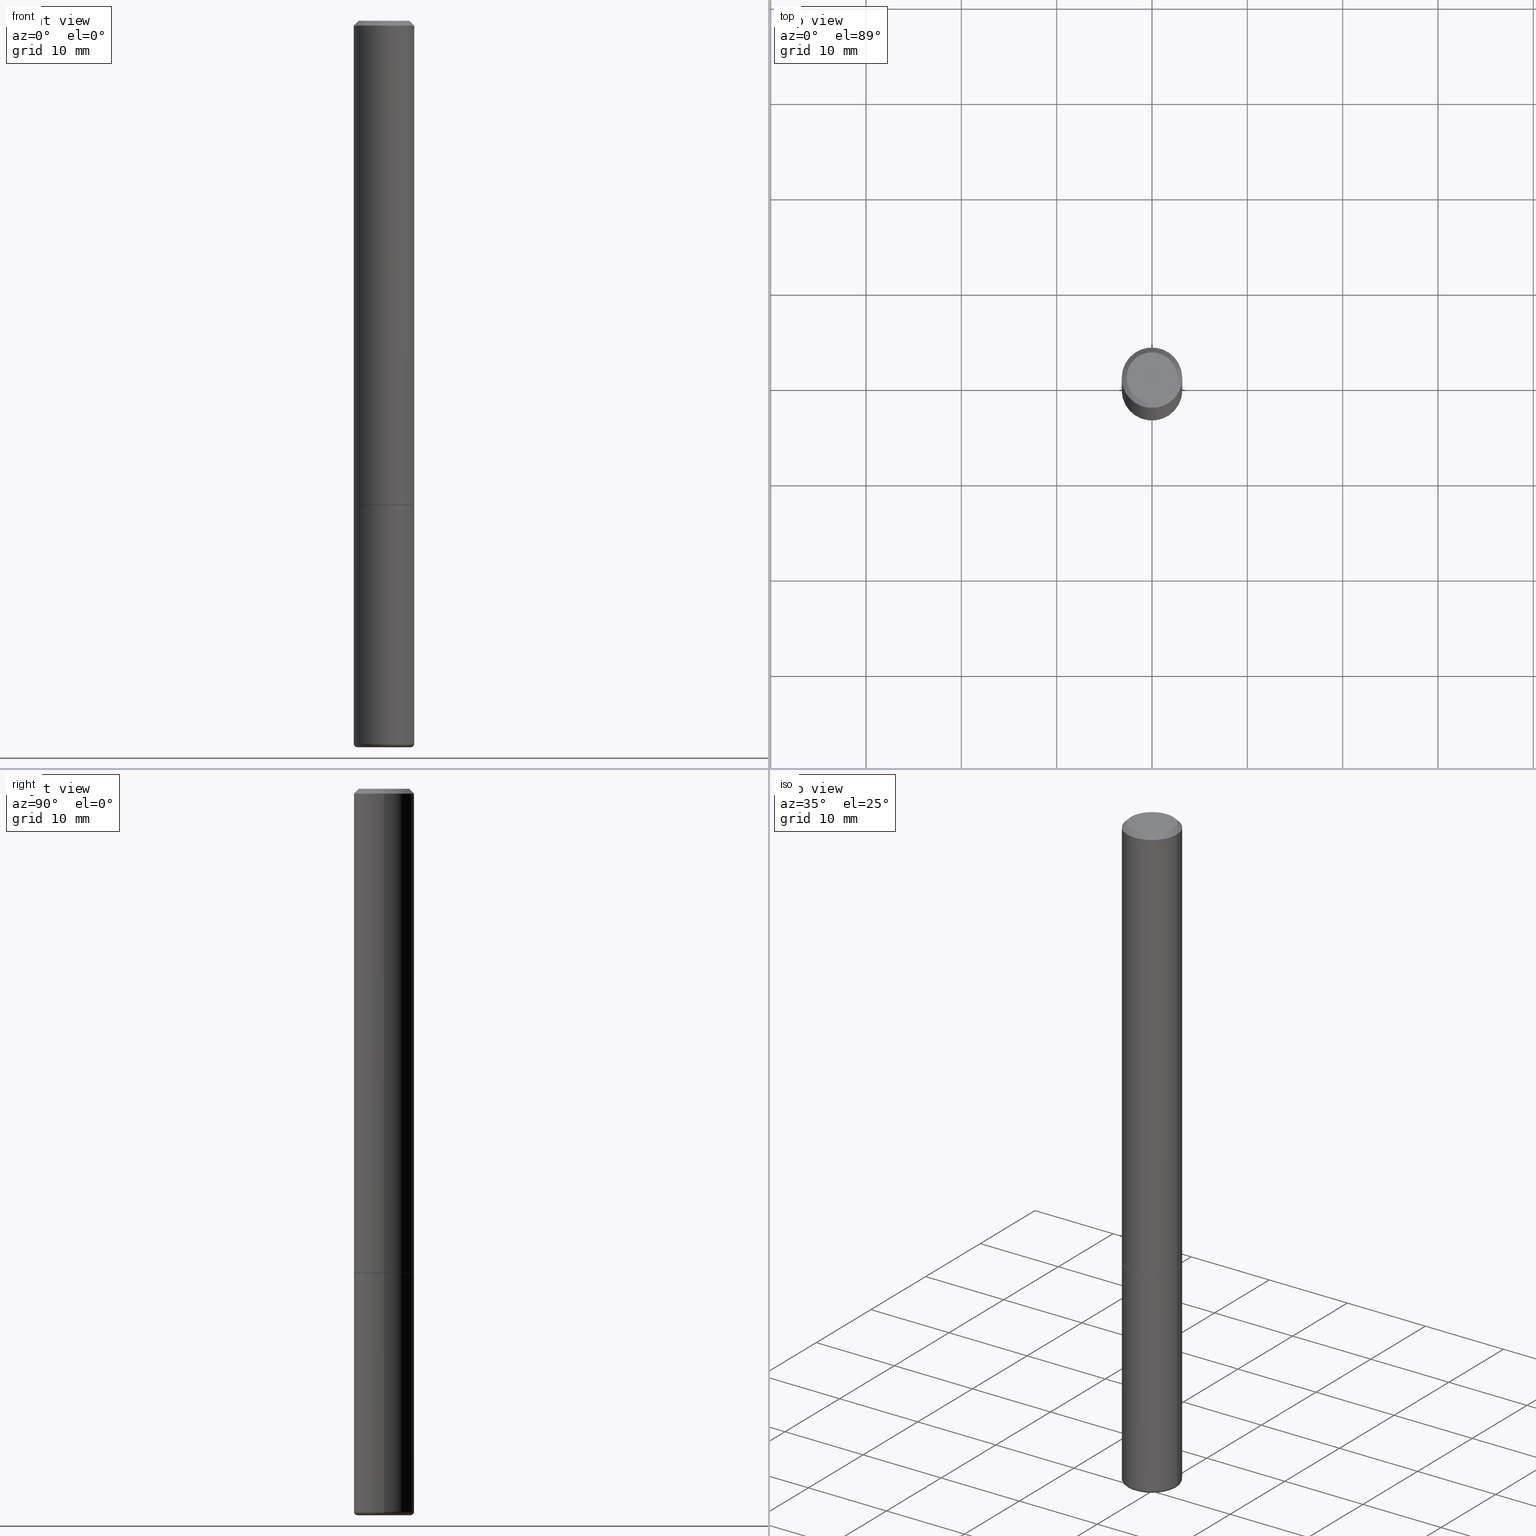
[diagram: canonical four-view strip — front | top / right | iso, engineering-drawing reading convention]
A machine part, canonical four-view strip (front | top / right | iso — engineering-drawing reading convention). The complete STEP part file that produces these views, byte-faithful:
ISO-10303-21;
HEADER;
FILE_DESCRIPTION (( 'STEP AP203' ),
    '1' );
FILE_NAME ('35672.STEP',
    '2022-11-02T20:38:24',
    ( '' ),
    ( '' ),
    'SwSTEP 2.0',
    'SolidWorks 2022',
    '' );
FILE_SCHEMA (( 'CONFIG_CONTROL_DESIGN' ));
ENDSEC;

DATA;
#1 = DIRECTION ( 'NONE',  ( -2.445468806185136597E-29, 3.491481338843145583E-15, 1.000000000000000000 ) ) ;
#2 = EDGE_CURVE ( 'NONE', #398, #193, #321, .T. ) ;
#3 = AXIS2_PLACEMENT_3D ( 'NONE', #360, #21, #473 ) ;
#4 = CARTESIAN_POINT ( 'NONE',  ( 4.890937612370295054E-31, -6.982962677686322424E-17, -0.02000000000000009062 ) ) ;
#5 = ORIENTED_EDGE ( 'NONE', *, *, #274, .F. ) ;
#6 = APPROVAL_STATUS ( 'not_yet_approved' ) ;
#7 = CARTESIAN_POINT ( 'NONE',  ( -0.09653660196752467115, -9.799926290737131105E-15, -2.999883649035179900 ) ) ;
#8 = ORIENTED_EDGE ( 'NONE', *, *, #336, .F. ) ;
#9 = DIRECTION ( 'NONE',  ( 1.000000000000000000, -6.982962677686269077E-15, 0.000000000000000000 ) ) ;
#10 = AXIS2_PLACEMENT_3D ( 'NONE', #226, #126, #258 ) ;
#11 = DIRECTION ( 'NONE',  ( -1.000000000000000000, 6.982962677686265922E-15, -4.876176775795935793E-29 ) ) ;
#12 = EDGE_LOOP ( 'NONE', ( #209, #41, #301, #195 ) ) ;
#13 = ORIENTED_EDGE ( 'NONE', *, *, #441, .F. ) ;
#14 = APPROVAL_STATUS ( 'not_yet_approved' ) ;
#15 = CALENDAR_DATE ( 2022, 2, 11 ) ;
#16 = DIRECTION ( 'NONE',  ( 1.000000000000000000, -6.982962677686267499E-15, 4.876176775795935793E-29 ) ) ;
#17 = ADVANCED_FACE ( 'NONE', ( #177 ), #130, .F. ) ;
#18 = CARTESIAN_POINT ( 'NONE',  ( 0.1249999999999993477, -9.273918764983002075E-16, -0.02000000000000009062 ) ) ;
#19 = AXIS2_PLACEMENT_3D ( 'NONE', #256, #297, #79 ) ;
#20 = ORIENTED_EDGE ( 'NONE', *, *, #34, .T. ) ;
#21 = DIRECTION ( 'NONE',  ( 0.000000000000000000, 0.000000000000000000, 1.000000000000000000 ) ) ;
#22 = DIRECTION ( 'NONE',  ( 1.000000000000000000, -6.982962677686266711E-15, 4.876176775795935793E-29 ) ) ;
#23 = EDGE_CURVE ( 'NONE', #428, #310, #322, .T. ) ;
#24 = ORIENTED_EDGE ( 'NONE', *, *, #120, .F. ) ;
#25 = ADVANCED_FACE ( 'NONE', ( #102 ), #140, .T. ) ;
#26 = VECTOR ( 'NONE', #454, 39.37007874015748143 ) ;
#27 = EDGE_LOOP ( 'NONE', ( #341, #439 ) ) ;
#28 = SECURITY_CLASSIFICATION ( '', '', #169 ) ;
#29 = CARTESIAN_POINT ( 'NONE',  ( 4.890937612370295054E-31, -6.982962677686322424E-17, -0.02000000000000009062 ) ) ;
#30 = CARTESIAN_POINT ( 'NONE',  ( 7.336406418555408669E-29, -1.047444401652943478E-14, -2.999999999999999556 ) ) ;
#31 = CC_DESIGN_PERSON_AND_ORGANIZATION_ASSIGNMENT ( #174, #244, ( #168 ) ) ;
#32 = DIRECTION ( 'NONE',  ( -2.445468806185136597E-29, 3.491481338843145583E-15, 1.000000000000000000 ) ) ;
#33 = VECTOR ( 'NONE', #279, 39.37007874015748143 ) ;
#34 = EDGE_CURVE ( 'NONE', #305, #259, #308, .T. ) ;
#35 = CARTESIAN_POINT ( 'NONE',  ( 7.299725783202013722E-29, -1.042207379062045199E-14, -2.985000571154037274 ) ) ;
#36 = CARTESIAN_POINT ( 'NONE',  ( 0.1100000000000002087, -1.119019968516594196E-14, -2.985000571154037274 ) ) ;
#37 = DIRECTION ( 'NONE',  ( 1.000000000000000000, -6.982962677686269077E-15, 0.000000000000000000 ) ) ;
#38 = ORIENTED_EDGE ( 'NONE', *, *, #120, .T. ) ;
#39 = VECTOR ( 'NONE', #275, 39.37007874015748854 ) ;
#40 = DIRECTION ( 'NONE',  ( -2.445468806185136597E-29, 3.491481338843145583E-15, 1.000000000000000000 ) ) ;
#41 = ORIENTED_EDGE ( 'NONE', *, *, #103, .T. ) ;
#42 = CARTESIAN_POINT ( 'NONE',  ( 4.890937612370273754E-29, -6.982962677686291954E-15, -2.000000000000000444 ) ) ;
#43 = VERTEX_POINT ( 'NONE', #173 ) ;
#44 = CARTESIAN_POINT ( 'NONE',  ( -0.1049999999999993577, 7.681258945454844472E-16, -4.268512490100935748E-17 ) ) ;
#45 = DATE_TIME_ROLE ( 'creation_date' ) ;
#46 = AXIS2_PLACEMENT_3D ( 'NONE', #109, #107, #330 ) ;
#47 = VECTOR ( 'NONE', #339, 39.37007874015748143 ) ;
#48 = CARTESIAN_POINT ( 'NONE',  ( 0.1250000000000000278, -7.855833012397075293E-15, -2.000000000000000444 ) ) ;
#49 = ORIENTED_EDGE ( 'NONE', *, *, #472, .T. ) ;
#50 = PERSON_AND_ORGANIZATION ( #350, #218 ) ;
#51 = EDGE_CURVE ( 'NONE', #398, #428, #284, .T. ) ;
#52 =( NAMED_UNIT ( * ) SI_UNIT ( $, .STERADIAN. ) SOLID_ANGLE_UNIT ( ) );
#53 = ORIENTED_EDGE ( 'NONE', *, *, #51, .T. ) ;
#54 = PERSON_AND_ORGANIZATION ( #350, #218 ) ;
#55 = ORIENTED_EDGE ( 'NONE', *, *, #422, .F. ) ;
#56 = APPROVAL ( #14, 'UNSPECIFIED' ) ;
#57 = DESIGN_CONTEXT ( 'detailed design', #451, 'design' ) ;
#58 = CONICAL_SURFACE ( 'NONE', #444, 0.1240000000000000269, 0.7853981633974141952 ) ;
#59 = CARTESIAN_POINT ( 'NONE',  ( 7.336406418555408669E-29, -1.047444401652943478E-14, -2.999999999999999556 ) ) ;
#60 = CIRCLE ( 'NONE', #207, 0.1049999999999993577 ) ;
#61 = DIRECTION ( 'NONE',  ( -2.445468806185136597E-29, 3.491481338843145583E-15, 1.000000000000000000 ) ) ;
#62 = LINE ( 'NONE', #319, #39 ) ;
#63 = CARTESIAN_POINT ( 'NONE',  ( 7.336121885900372411E-29, -1.047403777930701143E-14, -2.999883649035179900 ) ) ;
#64 = PLANE ( 'NONE',  #333 ) ;
#65 = ADVANCED_FACE ( 'NONE', ( #246 ), #64, .F. ) ;
#66 = CIRCLE ( 'NONE', #72, 0.09653660196752467115 ) ;
#67 = CARTESIAN_POINT ( 'NONE',  ( 7.336121885900372411E-29, -1.047403777930701143E-14, -2.999883649035179900 ) ) ;
#68 = TOROIDAL_SURFACE ( 'NONE', #328, 0.1100000000000002087, 0.01500000000000012608 ) ;
#69 = CARTESIAN_POINT ( 'NONE',  ( -0.1250000000000000278, -2.636471991862020635E-15, -1.999000000000000110 ) ) ;
#70 = DIRECTION ( 'NONE',  ( -2.445468806185136597E-29, 3.491481338843145583E-15, 1.000000000000000000 ) ) ;
#71 = MANIFOLD_SOLID_BREP ( 'Body-Move/Copy2[2]', #171 ) ;
#72 = AXIS2_PLACEMENT_3D ( 'NONE', #170, #476, #134 ) ;
#73 =( GEOMETRIC_REPRESENTATION_CONTEXT ( 3 ) GLOBAL_UNCERTAINTY_ASSIGNED_CONTEXT ( ( #383 ) ) GLOBAL_UNIT_ASSIGNED_CONTEXT ( ( #200, #477, #52 ) ) REPRESENTATION_CONTEXT ( 'NONE', 'WORKASPACE' ) );
#74 = DIRECTION ( 'NONE',  ( 0.9993908270190957621, -6.978169709227541488E-15, -0.03489949670250108021 ) ) ;
#75 = CC_DESIGN_PERSON_AND_ORGANIZATION_ASSIGNMENT ( #50, #164, ( #416 ) ) ;
#76 = DIRECTION ( 'NONE',  ( 1.000000000000000000, -6.982962677686207546E-15, 0.000000000000000000 ) ) ;
#77 = ORIENTED_EDGE ( 'NONE', *, *, #358, .T. ) ;
#78 = PERSON_AND_ORGANIZATION_ROLE ( 'creator' ) ;
#79 = DIRECTION ( 'NONE',  ( 1.000000000000000000, -6.982962677686269077E-15, 0.000000000000000000 ) ) ;
#80 = ADVANCED_BREP_SHAPE_REPRESENTATION ( '35672', ( #403, #71, #3 ), #73 ) ;
#81 = CONICAL_SURFACE ( 'NONE', #355, 0.09653660196752467115, 1.535889741755009918 ) ;
#82 = EDGE_LOOP ( 'NONE', ( #286, #77, #263 ) ) ;
#83 = VECTOR ( 'NONE', #117, 39.37007874015748143 ) ;
#84 = VECTOR ( 'NONE', #251, 39.37007874015748854 ) ;
#85 = APPLICATION_CONTEXT ( 'configuration controlled 3d designs of mechanical parts and assemblies' ) ;
#86 = DIRECTION ( 'NONE',  ( -2.445468806185136877E-29, 3.491481338843145188E-15, 1.000000000000000000 ) ) ;
#87 = ORIENTED_EDGE ( 'NONE', *, *, #407, .F. ) ;
#88 = APPROVAL_DATE_TIME ( #269, #372 ) ;
#89 = CARTESIAN_POINT ( 'NONE',  ( 4.890937612370273754E-29, -6.982962677686291954E-15, -2.000000000000000444 ) ) ;
#90 = ADVANCED_FACE ( 'NONE', ( #315 ), #478, .T. ) ;
#91 = EDGE_LOOP ( 'NONE', ( #445, #229, #118, #191 ) ) ;
#92 = LINE ( 'NONE', #121, #402 ) ;
#93 = EDGE_LOOP ( 'NONE', ( #5, #241, #482, #424 ) ) ;
#94 = ORIENTED_EDGE ( 'NONE', *, *, #397, .T. ) ;
#95 = AXIS2_PLACEMENT_3D ( 'NONE', #104, #202, #100 ) ;
#96 = LOCAL_TIME ( 16, 38, 24.00000000000000000, #338 ) ;
#97 = CARTESIAN_POINT ( 'NONE',  ( -0.1098691019675246683, -9.707232178059302942E-15, -2.999999999999999556 ) ) ;
#98 = ORIENTED_EDGE ( 'NONE', *, *, #51, .F. ) ;
#99 = APPLICATION_PROTOCOL_DEFINITION ( 'international standard', 'config_control_design', 1994, #85 ) ;
#100 = DIRECTION ( 'NONE',  ( 1.000000000000000000, -6.982962677686261189E-15, 0.000000000000000000 ) ) ;
#101 = CIRCLE ( 'NONE', #184, 0.01500000000000012955 ) ;
#102 = FACE_OUTER_BOUND ( 'NONE', #420, .T. ) ;
#103 = EDGE_CURVE ( 'NONE', #428, #398, #66, .T. ) ;
#104 = CARTESIAN_POINT ( 'NONE',  ( 7.299725783202013722E-29, -1.042207379062045199E-14, -2.985000571154037274 ) ) ;
#105 = PLANE ( 'NONE',  #359 ) ;
#106 = ADVANCED_FACE ( 'NONE', ( #277 ), #135, .T. ) ;
#107 = DIRECTION ( 'NONE',  ( -2.445468806185136597E-29, 3.491481338843145583E-15, 1.000000000000000000 ) ) ;
#108 = AXIS2_PLACEMENT_3D ( 'NONE', #384, #194, #234 ) ;
#109 = CARTESIAN_POINT ( 'NONE',  ( 4.888492143564088712E-29, -6.979471196347448158E-15, -1.999000000000000110 ) ) ;
#110 = VERTEX_POINT ( 'NONE', #69 ) ;
#111 = DIRECTION ( 'NONE',  ( 2.445468806185136597E-29, -3.491481338843145583E-15, -1.000000000000000000 ) ) ;
#112 = DIRECTION ( 'NONE',  ( 2.445468806185136597E-29, -3.491481338843145583E-15, -1.000000000000000000 ) ) ;
#113 = AXIS2_PLACEMENT_3D ( 'NONE', #29, #111, #411 ) ;
#114 = ORIENTED_EDGE ( 'NONE', *, *, #295, .F. ) ;
#115 = DIRECTION ( 'NONE',  ( 1.000000000000000000, -6.982962677686266711E-15, 0.000000000000000000 ) ) ;
#116 = ORIENTED_EDGE ( 'NONE', *, *, #459, .F. ) ;
#117 = DIRECTION ( 'NONE',  ( -0.9993908270190957621, 6.856857904024556470E-15, -0.03489949670250108021 ) ) ;
#118 = ORIENTED_EDGE ( 'NONE', *, *, #441, .T. ) ;
#119 = COORDINATED_UNIVERSAL_TIME_OFFSET ( 5, 0, .BEHIND. ) ;
#120 = EDGE_CURVE ( 'NONE', #418, #460, #235, .T. ) ;
#121 = CARTESIAN_POINT ( 'NONE',  ( 0.1250000000000000278, -8.728703347107836346E-16, 6.095220969744921142E-30 ) ) ;
#122 = AXIS2_PLACEMENT_3D ( 'NONE', #211, #245, #480 ) ;
#123 = ORIENTED_EDGE ( 'NONE', *, *, #435, .T. ) ;
#124 = CIRCLE ( 'NONE', #309, 0.1098691019675246683 ) ;
#125 = PERSON_AND_ORGANIZATION ( #350, #218 ) ;
#126 = DIRECTION ( 'NONE',  ( -2.445468806185136597E-29, 3.491481338843145583E-15, 1.000000000000000000 ) ) ;
#127 = DATE_AND_TIME ( #376, #96 ) ;
#128 = DIRECTION ( 'NONE',  ( 1.000000000000000000, -6.982962677686265922E-15, 0.000000000000000000 ) ) ;
#129 = PERSON_AND_ORGANIZATION ( #350, #218 ) ;
#130 = PLANE ( 'NONE',  #425 ) ;
#131 = CONICAL_SURFACE ( 'NONE', #323, 0.1249999999999993477, 0.7853981633974469467 ) ;
#132 = APPROVAL_PERSON_ORGANIZATION ( #311, #372, #429 ) ;
#133 = CARTESIAN_POINT ( 'NONE',  ( -0.1249999999999993477, 8.030407079339155047E-16, -0.02000000000000009062 ) ) ;
#134 = DIRECTION ( 'NONE',  ( 1.000000000000000000, -6.982962677686271444E-15, 0.000000000000000000 ) ) ;
#135 = CYLINDRICAL_SURFACE ( 'NONE', #227, 0.1249999999999996947 ) ;
#136 = APPROVAL_STATUS ( 'not_yet_approved' ) ;
#137 = EDGE_LOOP ( 'NONE', ( #382, #257, #447, #267 ) ) ;
#138 = VECTOR ( 'NONE', #204, 39.37007874015748854 ) ;
#139 = CIRCLE ( 'NONE', #468, 0.1098691019675246683 ) ;
#140 = CYLINDRICAL_SURFACE ( 'NONE', #122, 0.1249999999999996947 ) ;
#141 = CARTESIAN_POINT ( 'NONE',  ( 0.09653660196752467115, -1.113632694381688201E-14, -2.999883649035179900 ) ) ;
#142 = ADVANCED_FACE ( 'NONE', ( #367 ), #58, .T. ) ;
#143 = CARTESIAN_POINT ( 'NONE',  ( 0.1249999999999993477, -9.273918764983002075E-16, -0.02000000000000009062 ) ) ;
#144 = CC_DESIGN_DATE_AND_TIME_ASSIGNMENT ( #127, #464, ( #28 ) ) ;
#145 = AXIS2_PLACEMENT_3D ( 'NONE', #36, #307, #76 ) ;
#146 = CARTESIAN_POINT ( 'NONE',  ( 1.043851414335219781E-45, -1.490343170380447145E-31, -4.268512490100411279E-17 ) ) ;
#147 = ADVANCED_FACE ( 'NONE', ( #252 ), #81, .F. ) ;
#148 = FACE_OUTER_BOUND ( 'NONE', #91, .T. ) ;
#149 = CARTESIAN_POINT ( 'NONE',  ( 4.890937612370273754E-29, -6.982962677686291954E-15, -2.000000000000000444 ) ) ;
#150 = VERTEX_POINT ( 'NONE', #143 ) ;
#151 = DIRECTION ( 'NONE',  ( -2.445468806185136597E-29, 3.491481338843145583E-15, 1.000000000000000000 ) ) ;
#152 = CIRCLE ( 'NONE', #198, 0.1250000000000000278 ) ;
#153 = ADVANCED_FACE ( 'NONE', ( #289 ), #345, .F. ) ;
#154 = CIRCLE ( 'NONE', #365, 0.1249999999999993477 ) ;
#155 = EDGE_LOOP ( 'NONE', ( #201, #94, #13, #87 ) ) ;
#156 = ORIENTED_EDGE ( 'NONE', *, *, #407, .T. ) ;
#157 = PERSON_AND_ORGANIZATION ( #350, #218 ) ;
#158 = DIRECTION ( 'NONE',  ( -2.445468806185136877E-29, 3.491481338843145188E-15, 1.000000000000000000 ) ) ;
#159 = ORIENTED_EDGE ( 'NONE', *, *, #388, .T. ) ;
#160 = CARTESIAN_POINT ( 'NONE',  ( 0.09653660196752467115, -1.113632694381688201E-14, -2.999883649035179900 ) ) ;
#161 = EDGE_LOOP ( 'NONE', ( #470, #316, #123, #233 ) ) ;
#162 = CARTESIAN_POINT ( 'NONE',  ( 4.890937612370295054E-31, -6.982962677686322424E-17, -0.02000000000000009062 ) ) ;
#163 = AXIS2_PLACEMENT_3D ( 'NONE', #474, #271, #16 ) ;
#164 = PERSON_AND_ORGANIZATION_ROLE ( 'design_supplier' ) ;
#165 = EDGE_CURVE ( 'NONE', #110, #236, #415, .T. ) ;
#166 = CARTESIAN_POINT ( 'NONE',  ( 7.336406418555408669E-29, -1.047444401652943478E-14, -2.999999999999999556 ) ) ;
#167 = EDGE_LOOP ( 'NONE', ( #466, #220, #362, #8 ) ) ;
#168 = PRODUCT ( '35672', '35672', '', ( #399 ) ) ;
#169 = SECURITY_CLASSIFICATION_LEVEL ( 'unclassified' ) ;
#170 = CARTESIAN_POINT ( 'NONE',  ( 7.336121885900372411E-29, -1.047403777930701143E-14, -2.999883649035179900 ) ) ;
#171 = CLOSED_SHELL ( 'NONE', ( #239, #106, #187, #176, #25, #142, #65, #299 ) ) ;
#172 = VECTOR ( 'NONE', #354, 39.37007874015748143 ) ;
#173 = CARTESIAN_POINT ( 'NONE',  ( -0.1250000000000000278, -7.814339814453245950E-15, -2.000000000000000444 ) ) ;
#174 = PERSON_AND_ORGANIZATION ( #350, #218 ) ;
#175 = ORIENTED_EDGE ( 'NONE', *, *, #366, .F. ) ;
#176 = ADVANCED_FACE ( 'NONE', ( #453 ), #131, .T. ) ;
#177 = FACE_OUTER_BOUND ( 'NONE', #27, .T. ) ;
#178 = LOCAL_TIME ( 16, 38, 24.00000000000000000, #467 ) ;
#179 = EDGE_CURVE ( 'NONE', #259, #43, #293, .T. ) ;
#180 = DIRECTION ( 'NONE',  ( 7.105427357601001859E-15, 1.000000000000000000, -3.491481338843145583E-15 ) ) ;
#181 = CARTESIAN_POINT ( 'NONE',  ( -0.1098691019675246683, -9.613836232287328946E-15, -2.999999999999999556 ) ) ;
#182 = FACE_OUTER_BOUND ( 'NONE', #137, .T. ) ;
#183 = EDGE_LOOP ( 'NONE', ( #20, #434, #55, #223 ) ) ;
#184 = AXIS2_PLACEMENT_3D ( 'NONE', #221, #180, #485 ) ;
#185 = LINE ( 'NONE', #371, #84 ) ;
#186 = DIRECTION ( 'NONE',  ( 1.000000000000000000, -6.982962677686259611E-15, 4.883557194083110098E-29 ) ) ;
#187 = ADVANCED_FACE ( 'NONE', ( #148 ), #364, .T. ) ;
#188 = DIRECTION ( 'NONE',  ( -2.445468806185136597E-29, 3.491481338843145583E-15, 1.000000000000000000 ) ) ;
#189 = LINE ( 'NONE', #335, #47 ) ;
#190 = ADVANCED_FACE ( 'NONE', ( #219 ), #317, .F. ) ;
#191 = ORIENTED_EDGE ( 'NONE', *, *, #489, .F. ) ;
#192 = DIRECTION ( 'NONE',  ( 1.000000000000000000, -6.982962677686261189E-15, 0.000000000000000000 ) ) ;
#193 = VERTEX_POINT ( 'NONE', #181 ) ;
#194 = DIRECTION ( 'NONE',  ( 2.445468806185136597E-29, -3.491481338843145583E-15, -1.000000000000000000 ) ) ;
#195 = ORIENTED_EDGE ( 'NONE', *, *, #302, .F. ) ;
#196 = CALENDAR_DATE ( 2022, 2, 11 ) ;
#197 = DIRECTION ( 'NONE',  ( 1.000000000000000000, -6.982962677686269077E-15, 0.000000000000000000 ) ) ;
#198 = AXIS2_PLACEMENT_3D ( 'NONE', #327, #369, #294 ) ;
#199 = APPROVAL_DATE_TIME ( #461, #56 ) ;
#200 =( CONVERSION_BASED_UNIT ( 'INCH', #270 ) LENGTH_UNIT ( ) NAMED_UNIT ( #487 ) );
#201 = ORIENTED_EDGE ( 'NONE', *, *, #250, .T. ) ;
#202 = DIRECTION ( 'NONE',  ( -2.445468806185136597E-29, 3.491481338843145583E-15, 1.000000000000000000 ) ) ;
#203 = CARTESIAN_POINT ( 'NONE',  ( -0.1240000000000000269, -6.096591230995545328E-15, -2.000000000000000444 ) ) ;
#204 = DIRECTION ( 'NONE',  ( -0.9999619230641716427, 6.952228252019333330E-15, -0.008726535498327935014 ) ) ;
#205 = APPROVAL ( #136, 'UNSPECIFIED' ) ;
#206 = CLOSED_SHELL ( 'NONE', ( #438, #370, #340, #153, #147, #17, #90, #282, #190 ) ) ;
#207 = AXIS2_PLACEMENT_3D ( 'NONE', #146, #32, #292 ) ;
#208 = LINE ( 'NONE', #133, #33 ) ;
#209 = ORIENTED_EDGE ( 'NONE', *, *, #23, .F. ) ;
#210 = CARTESIAN_POINT ( 'NONE',  ( 4.890937612370273754E-29, -6.982962677686291954E-15, -2.000000000000000444 ) ) ;
#211 = CARTESIAN_POINT ( 'NONE',  ( 0.000000000000000000, 0.000000000000000000, 0.000000000000000000 ) ) ;
#212 = CIRCLE ( 'NONE', #488, 0.1249999999999993477 ) ;
#213 = CC_DESIGN_DATE_AND_TIME_ASSIGNMENT ( #389, #45, ( #442 ) ) ;
#214 = DIRECTION ( 'NONE',  ( -1.000000000000000000, 6.982962677686265922E-15, 0.000000000000000000 ) ) ;
#215 = DIRECTION ( 'NONE',  ( -1.000000000000000000, 6.982962677686271444E-15, 0.000000000000000000 ) ) ;
#216 = CARTESIAN_POINT ( 'NONE',  ( -0.1250000000000000278, 8.881784197001254296E-16, -6.148668862818634329E-30 ) ) ;
#217 = AXIS2_PLACEMENT_3D ( 'NONE', #63, #356, #320 ) ;
#218 = ORGANIZATION ( 'UNSPECIFIED', 'UNSPECIFIED', '' ) ;
#219 = FACE_OUTER_BOUND ( 'NONE', #12, .T. ) ;
#220 = ORIENTED_EDGE ( 'NONE', *, *, #295, .T. ) ;
#221 = CARTESIAN_POINT ( 'NONE',  ( -0.1100000000000002087, -9.640476781284339513E-15, -2.985000571154037274 ) ) ;
#222 = CARTESIAN_POINT ( 'NONE',  ( 0.1240000000000000269, -7.848850049719389279E-15, -2.000000000000000444 ) ) ;
#223 = ORIENTED_EDGE ( 'NONE', *, *, #435, .F. ) ;
#224 = PRODUCT_DEFINITION_SHAPE ( 'NONE', 'NONE',  #442 ) ;
#225 = PERSON_AND_ORGANIZATION_ROLE ( 'classification_officer' ) ;
#226 = CARTESIAN_POINT ( 'NONE',  ( 0.000000000000000000, 0.000000000000000000, 0.000000000000000000 ) ) ;
#227 = AXIS2_PLACEMENT_3D ( 'NONE', #401, #61, #22 ) ;
#228 = CIRCLE ( 'NONE', #19, 0.1240000000000000269 ) ;
#229 = ORIENTED_EDGE ( 'NONE', *, *, #459, .T. ) ;
#230 = COORDINATED_UNIVERSAL_TIME_OFFSET ( 5, 0, .BEHIND. ) ;
#231 = FACE_OUTER_BOUND ( 'NONE', #276, .T. ) ;
#232 = ORIENTED_EDGE ( 'NONE', *, *, #348, .F. ) ;
#233 = ORIENTED_EDGE ( 'NONE', *, *, #380, .F. ) ;
#234 = DIRECTION ( 'NONE',  ( -1.000000000000000000, 6.982962677686266711E-15, 0.000000000000000000 ) ) ;
#235 = CIRCLE ( 'NONE', #481, 0.1049999999999993577 ) ;
#236 = VERTEX_POINT ( 'NONE', #414 ) ;
#237 = CC_DESIGN_APPROVAL ( #56, ( #416 ) ) ;
#238 = CARTESIAN_POINT ( 'NONE',  ( 0.1098691019675246683, -1.122820077059459480E-14, -2.999999999999999556 ) ) ;
#239 = ADVANCED_FACE ( 'NONE', ( #182 ), #400, .T. ) ;
#240 = DATE_AND_TIME ( #15, #450 ) ;
#241 = ORIENTED_EDGE ( 'NONE', *, *, #366, .T. ) ;
#242 = DIRECTION ( 'NONE',  ( 1.000000000000000000, -6.982962677686265922E-15, 4.876176775795935793E-29 ) ) ;
#243 = AXIS2_PLACEMENT_3D ( 'NONE', #374, #151, #386 ) ;
#244 = PERSON_AND_ORGANIZATION_ROLE ( 'design_owner' ) ;
#245 = DIRECTION ( 'NONE',  ( -2.445468806185136597E-29, 3.491481338843145583E-15, 1.000000000000000000 ) ) ;
#246 = FACE_OUTER_BOUND ( 'NONE', #353, .T. ) ;
#247 = CARTESIAN_POINT ( 'NONE',  ( 1.043851414335219781E-45, -1.490343170380447145E-31, -4.268512490100411279E-17 ) ) ;
#248 = CIRCLE ( 'NONE', #483, 0.1250000000000000278 ) ;
#249 = CARTESIAN_POINT ( 'NONE',  ( 4.890937612370295054E-31, -6.982962677686322424E-17, -0.02000000000000009062 ) ) ;
#250 = EDGE_CURVE ( 'NONE', #236, #110, #152, .T. ) ;
#251 = DIRECTION ( 'NONE',  ( -0.7071067811865232589, 7.493145998870265808E-15, 0.7071067811865715536 ) ) ;
#252 = FACE_OUTER_BOUND ( 'NONE', #82, .T. ) ;
#253 = AXIS2_PLACEMENT_3D ( 'NONE', #486, #455, #368 ) ;
#254 = AXIS2_PLACEMENT_3D ( 'NONE', #89, #469, #9 ) ;
#255 = CARTESIAN_POINT ( 'NONE',  ( 4.890937612370273754E-29, -6.982962677686291954E-15, -2.000000000000000444 ) ) ;
#256 = CARTESIAN_POINT ( 'NONE',  ( 4.890937612370273754E-29, -6.982962677686291954E-15, -2.000000000000000444 ) ) ;
#257 = ORIENTED_EDGE ( 'NONE', *, *, #274, .T. ) ;
#258 = DIRECTION ( 'NONE',  ( 1.000000000000000000, -6.982962677686267499E-15, 4.876176775795935793E-29 ) ) ;
#259 = VERTEX_POINT ( 'NONE', #492 ) ;
#260 = CARTESIAN_POINT ( 'NONE',  ( 0.1098691019675246683, -1.124165585499956661E-14, -2.999999999999999556 ) ) ;
#261 = CIRCLE ( 'NONE', #446, 0.1250000000000000278 ) ;
#262 = CC_DESIGN_SECURITY_CLASSIFICATION ( #28, ( #416 ) ) ;
#263 = ORIENTED_EDGE ( 'NONE', *, *, #103, .F. ) ;
#264 = APPROVAL_ROLE ( '' ) ;
#265 = LINE ( 'NONE', #7, #83 ) ;
#266 = EDGE_CURVE ( 'NONE', #460, #418, #60, .T. ) ;
#267 = ORIENTED_EDGE ( 'NONE', *, *, #452, .F. ) ;
#268 = LINE ( 'NONE', #344, #324 ) ;
#269 = DATE_AND_TIME ( #314, #410 ) ;
#270 = LENGTH_MEASURE_WITH_UNIT ( LENGTH_MEASURE( 0.02539999999999999897 ), #390 );
#271 = DIRECTION ( 'NONE',  ( -2.445468806185136597E-29, 3.491481338843145583E-15, 1.000000000000000000 ) ) ;
#272 = VECTOR ( 'NONE', #280, 39.37007874015748854 ) ;
#273 = APPROVAL_PERSON_ORGANIZATION ( #129, #205, #436 ) ;
#274 = EDGE_CURVE ( 'NONE', #456, #110, #185, .T. ) ;
#275 = DIRECTION ( 'NONE',  ( 0.7071067811865232589, -2.468850131082003836E-15, 0.7071067811865715536 ) ) ;
#276 = EDGE_LOOP ( 'NONE', ( #53, #375, #385, #392 ) ) ;
#277 = FACE_OUTER_BOUND ( 'NONE', #155, .T. ) ;
#278 = CC_DESIGN_PERSON_AND_ORGANIZATION_ASSIGNMENT ( #393, #78, ( #416 ) ) ;
#279 = DIRECTION ( 'NONE',  ( -0.7071067811865465735, 2.468850131082246805E-15, -0.7071067811865484609 ) ) ;
#280 = DIRECTION ( 'NONE',  ( 0.9999619230641716427, -6.890705306874684122E-15, -0.008726535498327935014 ) ) ;
#281 = LINE ( 'NONE', #18, #172 ) ;
#282 = ADVANCED_FACE ( 'NONE', ( #325 ), #68, .T. ) ;
#283 = DIRECTION ( 'NONE',  ( 2.438088387897960049E-29, -3.491481338843145188E-15, -1.000000000000000000 ) ) ;
#284 = CIRCLE ( 'NONE', #217, 0.09653660196752467115 ) ;
#285 = CIRCLE ( 'NONE', #254, 0.1240000000000000269 ) ;
#286 = ORIENTED_EDGE ( 'NONE', *, *, #290, .F. ) ;
#287 = PRODUCT_RELATED_PRODUCT_CATEGORY ( 'detail', '', ( #168 ) ) ;
#288 = DIRECTION ( 'NONE',  ( 2.445468806185136597E-29, -3.491481338843145583E-15, -1.000000000000000000 ) ) ;
#289 = FACE_OUTER_BOUND ( 'NONE', #296, .T. ) ;
#290 = EDGE_CURVE ( 'NONE', #431, #428, #417, .T. ) ;
#291 = TOROIDAL_SURFACE ( 'NONE', #243, 0.1100000000000002087, 0.01500000000000012608 ) ;
#292 = DIRECTION ( 'NONE',  ( 1.000000000000000000, -6.982962677686267499E-15, 4.874400871621268483E-29 ) ) ;
#293 = LINE ( 'NONE', #216, #26 ) ;
#294 = DIRECTION ( 'NONE',  ( 1.000000000000000000, -6.982962677686269077E-15, 0.000000000000000000 ) ) ;
#295 = EDGE_CURVE ( 'NONE', #193, #259, #101, .T. ) ;
#296 = EDGE_LOOP ( 'NONE', ( #395, #298, #98 ) ) ;
#297 = DIRECTION ( 'NONE',  ( -2.445468806185136597E-29, 3.491481338843145583E-15, 1.000000000000000000 ) ) ;
#298 = ORIENTED_EDGE ( 'NONE', *, *, #290, .T. ) ;
#299 = ADVANCED_FACE ( 'NONE', ( #484 ), #105, .F. ) ;
#300 = FACE_OUTER_BOUND ( 'NONE', #167, .T. ) ;
#301 = ORIENTED_EDGE ( 'NONE', *, *, #2, .T. ) ;
#302 = EDGE_CURVE ( 'NONE', #310, #193, #124, .T. ) ;
#303 = SHAPE_DEFINITION_REPRESENTATION ( #224, #80 ) ;
#304 = DIRECTION ( 'NONE',  ( -2.445468806185136597E-29, 3.491481338843145583E-15, 1.000000000000000000 ) ) ;
#305 = VERTEX_POINT ( 'NONE', #430 ) ;
#306 = CALENDAR_DATE ( 2022, 2, 11 ) ;
#307 = DIRECTION ( 'NONE',  ( -6.982962677686266711E-15, -1.000000000000000000, 3.491481338843145583E-15 ) ) ;
#308 = CIRCLE ( 'NONE', #95, 0.1250000000000000278 ) ;
#309 = AXIS2_PLACEMENT_3D ( 'NONE', #166, #427, #115 ) ;
#310 = VERTEX_POINT ( 'NONE', #260 ) ;
#311 = PERSON_AND_ORGANIZATION ( #350, #218 ) ;
#312 = CYLINDRICAL_SURFACE ( 'NONE', #10, 0.1250000000000000278 ) ;
#313 = ORIENTED_EDGE ( 'NONE', *, *, #388, .F. ) ;
#314 = CALENDAR_DATE ( 2022, 2, 11 ) ;
#315 = FACE_OUTER_BOUND ( 'NONE', #161, .T. ) ;
#316 = ORIENTED_EDGE ( 'NONE', *, *, #413, .T. ) ;
#317 = CONICAL_SURFACE ( 'NONE', #409, 0.1098691019675246683, 1.562069680534970972 ) ;
#318 = CC_DESIGN_APPROVAL ( #372, ( #28 ) ) ;
#319 = CARTESIAN_POINT ( 'NONE',  ( 0.1240000000000000269, -7.848850049719389279E-15, -2.000000000000000444 ) ) ;
#320 = DIRECTION ( 'NONE',  ( 1.000000000000000000, -6.982962677686271444E-15, 0.000000000000000000 ) ) ;
#321 = LINE ( 'NONE', #97, #138 ) ;
#322 = LINE ( 'NONE', #238, #272 ) ;
#323 = AXIS2_PLACEMENT_3D ( 'NONE', #249, #112, #214 ) ;
#324 = VECTOR ( 'NONE', #158, 39.37007874015748143 ) ;
#325 = FACE_OUTER_BOUND ( 'NONE', #347, .T. ) ;
#326 = DIRECTION ( 'NONE',  ( -2.445468806185136597E-29, 3.491481338843145583E-15, 1.000000000000000000 ) ) ;
#327 = CARTESIAN_POINT ( 'NONE',  ( 4.888492143564088712E-29, -6.979471196347448158E-15, -1.999000000000000110 ) ) ;
#328 = AXIS2_PLACEMENT_3D ( 'NONE', #35, #412, #186 ) ;
#329 = DIRECTION ( 'NONE',  ( -1.000000000000000000, 6.982962677686266711E-15, 0.000000000000000000 ) ) ;
#330 = DIRECTION ( 'NONE',  ( 1.000000000000000000, -6.982962677686269077E-15, 0.000000000000000000 ) ) ;
#331 = ORIENTED_EDGE ( 'NONE', *, *, #397, .F. ) ;
#332 = DIRECTION ( 'NONE',  ( 1.000000000000000000, -6.982962677686265922E-15, 0.000000000000000000 ) ) ;
#333 = AXIS2_PLACEMENT_3D ( 'NONE', #210, #363, #242 ) ;
#334 = CC_DESIGN_APPROVAL ( #205, ( #442 ) ) ;
#335 = CARTESIAN_POINT ( 'NONE',  ( -0.1249999999999996947, 8.881784197001230630E-16, -6.148668862818616813E-30 ) ) ;
#336 = EDGE_CURVE ( 'NONE', #310, #305, #475, .T. ) ;
#337 = VERTEX_POINT ( 'NONE', #222 ) ;
#338 = COORDINATED_UNIVERSAL_TIME_OFFSET ( 5, 0, .BEHIND. ) ;
#339 = DIRECTION ( 'NONE',  ( -2.445468806185136877E-29, 3.491481338843145188E-15, 1.000000000000000000 ) ) ;
#340 = ADVANCED_FACE ( 'NONE', ( #462 ), #312, .T. ) ;
#341 = ORIENTED_EDGE ( 'NONE', *, *, #422, .T. ) ;
#342 = CARTESIAN_POINT ( 'NONE',  ( 7.332110811570533898E-16, 0.1049999999999993577, -3.879481030290301102E-16 ) ) ;
#343 = ORIENTED_EDGE ( 'NONE', *, *, #165, .T. ) ;
#344 = CARTESIAN_POINT ( 'NONE',  ( 0.1249999999999996947, -8.728703347107811695E-16, 6.095220969744905027E-30 ) ) ;
#345 = CONICAL_SURFACE ( 'NONE', #253, 0.09653660196752467115, 1.535889741755009918 ) ;
#346 = LOCAL_TIME ( 16, 38, 24.00000000000000000, #230 ) ;
#347 = EDGE_LOOP ( 'NONE', ( #114, #49, #433, #405 ) ) ;
#348 = EDGE_CURVE ( 'NONE', #337, #456, #228, .T. ) ;
#349 = DIRECTION ( 'NONE',  ( 1.000000000000000000, -6.982962677686266711E-15, 0.000000000000000000 ) ) ;
#350 = PERSON ( 'UNSPECIFIED', 'UNSPECIFIED', 'UNSPECIFIED', ('UNSPECIFIED'), ('UNSPECIFIED'), ('UNSPECIFIED') ) ;
#351 = ORIENTED_EDGE ( 'NONE', *, *, #266, .T. ) ;
#352 = COORDINATED_UNIVERSAL_TIME_OFFSET ( 5, 0, .BEHIND. ) ;
#353 = EDGE_LOOP ( 'NONE', ( #232, #175 ) ) ;
#354 = DIRECTION ( 'NONE',  ( 0.7071067811865465735, -7.319954787623252890E-15, -0.7071067811865484609 ) ) ;
#355 = AXIS2_PLACEMENT_3D ( 'NONE', #67, #448, #215 ) ;
#356 = DIRECTION ( 'NONE',  ( -2.445468806185136597E-29, 3.491481338843145583E-15, 1.000000000000000000 ) ) ;
#357 = CIRCLE ( 'NONE', #426, 0.1250000000000000278 ) ;
#358 = EDGE_CURVE ( 'NONE', #431, #398, #265, .T. ) ;
#359 = AXIS2_PLACEMENT_3D ( 'NONE', #342, #419, #11 ) ;
#360 = CARTESIAN_POINT ( 'NONE',  ( 0.000000000000000000, 0.000000000000000000, 0.000000000000000000 ) ) ;
#361 = DIRECTION ( 'NONE',  ( -1.000000000000000000, 6.982962677686265922E-15, -4.876176775795935793E-29 ) ) ;
#362 = ORIENTED_EDGE ( 'NONE', *, *, #34, .F. ) ;
#363 = DIRECTION ( 'NONE',  ( -2.438088387897960049E-29, 3.491481338843145188E-15, 1.000000000000000000 ) ) ;
#364 = CONICAL_SURFACE ( 'NONE', #113, 0.1249999999999993477, 0.7853981633974469467 ) ;
#365 = AXIS2_PLACEMENT_3D ( 'NONE', #162, #188, #332 ) ;
#366 = EDGE_CURVE ( 'NONE', #456, #337, #285, .T. ) ;
#367 = FACE_OUTER_BOUND ( 'NONE', #93, .T. ) ;
#368 = DIRECTION ( 'NONE',  ( -1.000000000000000000, 6.982962677686271444E-15, 0.000000000000000000 ) ) ;
#369 = DIRECTION ( 'NONE',  ( -2.445468806185136597E-29, 3.491481338843145583E-15, 1.000000000000000000 ) ) ;
#370 = ADVANCED_FACE ( 'NONE', ( #300 ), #291, .T. ) ;
#371 = CARTESIAN_POINT ( 'NONE',  ( -0.1240000000000000269, -6.101889685343766941E-15, -2.000000000000000444 ) ) ;
#372 = APPROVAL ( #6, 'UNSPECIFIED' ) ;
#373 = DIRECTION ( 'NONE',  ( 1.000000000000000000, -6.982962677686269077E-15, 0.000000000000000000 ) ) ;
#374 = CARTESIAN_POINT ( 'NONE',  ( 7.299725783202013722E-29, -1.042207379062045199E-14, -2.985000571154037274 ) ) ;
#375 = ORIENTED_EDGE ( 'NONE', *, *, #23, .T. ) ;
#376 = CALENDAR_DATE ( 2022, 2, 11 ) ;
#377 = AXIS2_PLACEMENT_3D ( 'NONE', #255, #326, #373 ) ;
#378 = VECTOR ( 'NONE', #74, 39.37007874015748143 ) ;
#379 = CARTESIAN_POINT ( 'NONE',  ( -0.09653660196752467115, -9.799926290737131105E-15, -2.999883649035179900 ) ) ;
#380 = EDGE_CURVE ( 'NONE', #43, #463, #248, .T. ) ;
#381 = CC_DESIGN_PERSON_AND_ORGANIZATION_ASSIGNMENT ( #54, #421, ( #442 ) ) ;
#382 = ORIENTED_EDGE ( 'NONE', *, *, #348, .T. ) ;
#383 = UNCERTAINTY_MEASURE_WITH_UNIT (LENGTH_MEASURE( 1.000000000000000082E-05 ), #200, 'distance_accuracy_value', 'NONE');
#384 = CARTESIAN_POINT ( 'NONE',  ( 7.336406418555408669E-29, -1.047444401652943478E-14, -2.999999999999999556 ) ) ;
#385 = ORIENTED_EDGE ( 'NONE', *, *, #472, .F. ) ;
#386 = DIRECTION ( 'NONE',  ( 1.000000000000000000, -6.982962677686259611E-15, 4.883557194083110098E-29 ) ) ;
#387 = VERTEX_POINT ( 'NONE', #471 ) ;
#388 = EDGE_CURVE ( 'NONE', #387, #150, #212, .T. ) ;
#389 = DATE_AND_TIME ( #306, #346 ) ;
#390 =( LENGTH_UNIT ( ) NAMED_UNIT ( * ) SI_UNIT ( $, .METRE. ) );
#391 = APPROVAL_PERSON_ORGANIZATION ( #157, #56, #264 ) ;
#392 = ORIENTED_EDGE ( 'NONE', *, *, #2, .F. ) ;
#393 = PERSON_AND_ORGANIZATION ( #350, #218 ) ;
#394 = CARTESIAN_POINT ( 'NONE',  ( 0.1049999999999993577, -8.238720831321533257E-16, -4.268512490099867088E-17 ) ) ;
#395 = ORIENTED_EDGE ( 'NONE', *, *, #358, .F. ) ;
#396 = APPROVAL_DATE_TIME ( #240, #205 ) ;
#397 = EDGE_CURVE ( 'NONE', #110, #387, #189, .T. ) ;
#398 = VERTEX_POINT ( 'NONE', #379 ) ;
#399 = MECHANICAL_CONTEXT ( 'NONE', #85, 'mechanical' ) ;
#400 = CONICAL_SURFACE ( 'NONE', #377, 0.1240000000000000269, 0.7853981633974141952 ) ;
#401 = CARTESIAN_POINT ( 'NONE',  ( 0.000000000000000000, 0.000000000000000000, 0.000000000000000000 ) ) ;
#402 = VECTOR ( 'NONE', #86, 39.37007874015748143 ) ;
#403 = MANIFOLD_SOLID_BREP ( 'Body-Move/Copy2[1]', #206 ) ;
#404 = DIRECTION ( 'NONE',  ( -2.445468806185136597E-29, 3.491481338843145583E-15, 1.000000000000000000 ) ) ;
#405 = ORIENTED_EDGE ( 'NONE', *, *, #413, .F. ) ;
#406 = ORIENTED_EDGE ( 'NONE', *, *, #489, .T. ) ;
#407 = EDGE_CURVE ( 'NONE', #236, #150, #268, .T. ) ;
#408 = DIRECTION ( 'NONE',  ( 1.000000000000000000, -6.982962677686269077E-15, 0.000000000000000000 ) ) ;
#409 = AXIS2_PLACEMENT_3D ( 'NONE', #30, #288, #329 ) ;
#410 = LOCAL_TIME ( 16, 38, 24.00000000000000000, #119 ) ;
#411 = DIRECTION ( 'NONE',  ( -1.000000000000000000, 6.982962677686265922E-15, 0.000000000000000000 ) ) ;
#412 = DIRECTION ( 'NONE',  ( -2.445468806185136597E-29, 3.491481338843145583E-15, 1.000000000000000000 ) ) ;
#413 = EDGE_CURVE ( 'NONE', #259, #305, #357, .T. ) ;
#414 = CARTESIAN_POINT ( 'NONE',  ( 0.1250000000000000278, -7.852341531058232286E-15, -1.999000000000000110 ) ) ;
#415 = CIRCLE ( 'NONE', #46, 0.1250000000000000278 ) ;
#416 = PRODUCT_DEFINITION_FORMATION_WITH_SPECIFIED_SOURCE ( 'ANY', '', #168, .NOT_KNOWN. ) ;
#417 = LINE ( 'NONE', #141, #378 ) ;
#418 = VERTEX_POINT ( 'NONE', #44 ) ;
#419 = DIRECTION ( 'NONE',  ( 2.438088387897960049E-29, -3.491481338843145188E-15, -1.000000000000000000 ) ) ;
#420 = EDGE_LOOP ( 'NONE', ( #331, #343, #156, #313 ) ) ;
#421 = PERSON_AND_ORGANIZATION_ROLE ( 'creator' ) ;
#422 = EDGE_CURVE ( 'NONE', #463, #43, #261, .T. ) ;
#423 = CARTESIAN_POINT ( 'NONE',  ( 4.890937612370273754E-29, -6.982962677686291954E-15, -2.000000000000000444 ) ) ;
#424 = ORIENTED_EDGE ( 'NONE', *, *, #165, .F. ) ;
#425 = AXIS2_PLACEMENT_3D ( 'NONE', #440, #283, #361 ) ;
#426 = AXIS2_PLACEMENT_3D ( 'NONE', #458, #40, #192 ) ;
#427 = DIRECTION ( 'NONE',  ( -2.445468806185136597E-29, 3.491481338843145583E-15, 1.000000000000000000 ) ) ;
#428 = VERTEX_POINT ( 'NONE', #160 ) ;
#429 = APPROVAL_ROLE ( '' ) ;
#430 = CARTESIAN_POINT ( 'NONE',  ( 0.1250000000000000278, -1.129494412533123533E-14, -2.985000571154037274 ) ) ;
#431 = VERTEX_POINT ( 'NONE', #465 ) ;
#432 = DIRECTION ( 'NONE',  ( -2.445468806185136597E-29, 3.491481338843145583E-15, 1.000000000000000000 ) ) ;
#433 = ORIENTED_EDGE ( 'NONE', *, *, #336, .T. ) ;
#434 = ORIENTED_EDGE ( 'NONE', *, *, #179, .T. ) ;
#435 = EDGE_CURVE ( 'NONE', #305, #463, #92, .T. ) ;
#436 = APPROVAL_ROLE ( '' ) ;
#437 = EDGE_LOOP ( 'NONE', ( #38, #351 ) ) ;
#438 = ADVANCED_FACE ( 'NONE', ( #231 ), #457, .F. ) ;
#439 = ORIENTED_EDGE ( 'NONE', *, *, #380, .T. ) ;
#440 = CARTESIAN_POINT ( 'NONE',  ( 8.728703347108323468E-16, 0.1249999999999930472, -2.000000000000000888 ) ) ;
#441 = EDGE_CURVE ( 'NONE', #150, #387, #154, .T. ) ;
#442 = PRODUCT_DEFINITION ( 'UNKNOWN', '', #416, #57 ) ;
#443 = EDGE_LOOP ( 'NONE', ( #116, #24, #406, #159 ) ) ;
#444 = AXIS2_PLACEMENT_3D ( 'NONE', #149, #70, #408 ) ;
#445 = ORIENTED_EDGE ( 'NONE', *, *, #266, .F. ) ;
#446 = AXIS2_PLACEMENT_3D ( 'NONE', #42, #432, #197 ) ;
#447 = ORIENTED_EDGE ( 'NONE', *, *, #250, .F. ) ;
#448 = DIRECTION ( 'NONE',  ( 2.445468806185136597E-29, -3.491481338843145583E-15, -1.000000000000000000 ) ) ;
#449 = DIRECTION ( 'NONE',  ( 1.000000000000000000, -6.982962677686267499E-15, 4.874400871621268483E-29 ) ) ;
#450 = LOCAL_TIME ( 16, 38, 24.00000000000000000, #352 ) ;
#451 = APPLICATION_CONTEXT ( 'configuration controlled 3d designs of mechanical parts and assemblies' ) ;
#452 = EDGE_CURVE ( 'NONE', #337, #236, #62, .T. ) ;
#453 = FACE_OUTER_BOUND ( 'NONE', #443, .T. ) ;
#454 = DIRECTION ( 'NONE',  ( -2.445468806185136877E-29, 3.491481338843145188E-15, 1.000000000000000000 ) ) ;
#455 = DIRECTION ( 'NONE',  ( 2.445468806185136597E-29, -3.491481338843145583E-15, -1.000000000000000000 ) ) ;
#456 = VERTEX_POINT ( 'NONE', #203 ) ;
#457 = CONICAL_SURFACE ( 'NONE', #108, 0.1098691019675246683, 1.562069680534970972 ) ;
#458 = CARTESIAN_POINT ( 'NONE',  ( 7.299725783202013722E-29, -1.042207379062045199E-14, -2.985000571154037274 ) ) ;
#459 = EDGE_CURVE ( 'NONE', #460, #150, #281, .T. ) ;
#460 = VERTEX_POINT ( 'NONE', #394 ) ;
#461 = DATE_AND_TIME ( #196, #178 ) ;
#462 = FACE_OUTER_BOUND ( 'NONE', #183, .T. ) ;
#463 = VERTEX_POINT ( 'NONE', #48 ) ;
#464 = DATE_TIME_ROLE ( 'classification_date' ) ;
#465 = CARTESIAN_POINT ( 'NONE',  ( 7.328228073267898184E-29, -1.046176604627832574E-14, -2.996512516610355448 ) ) ;
#466 = ORIENTED_EDGE ( 'NONE', *, *, #302, .T. ) ;
#467 = COORDINATED_UNIVERSAL_TIME_OFFSET ( 5, 0, .BEHIND. ) ;
#468 = AXIS2_PLACEMENT_3D ( 'NONE', #59, #404, #349 ) ;
#469 = DIRECTION ( 'NONE',  ( -2.445468806185136597E-29, 3.491481338843145583E-15, 1.000000000000000000 ) ) ;
#470 = ORIENTED_EDGE ( 'NONE', *, *, #179, .F. ) ;
#471 = CARTESIAN_POINT ( 'NONE',  ( -0.1249999999999993477, 8.030407079339155047E-16, -0.02000000000000009062 ) ) ;
#472 = EDGE_CURVE ( 'NONE', #193, #310, #139, .T. ) ;
#473 = DIRECTION ( 'NONE',  ( 1.000000000000000000, 0.000000000000000000, 0.000000000000000000 ) ) ;
#474 = CARTESIAN_POINT ( 'NONE',  ( 0.000000000000000000, 0.000000000000000000, 0.000000000000000000 ) ) ;
#475 = CIRCLE ( 'NONE', #145, 0.01500000000000012955 ) ;
#476 = DIRECTION ( 'NONE',  ( -2.445468806185136597E-29, 3.491481338843145583E-15, 1.000000000000000000 ) ) ;
#477 =( NAMED_UNIT ( * ) PLANE_ANGLE_UNIT ( ) SI_UNIT ( $, .RADIAN. ) );
#478 = CYLINDRICAL_SURFACE ( 'NONE', #163, 0.1250000000000000278 ) ;
#479 = APPLICATION_PROTOCOL_DEFINITION ( 'international standard', 'config_control_design', 1994, #451 ) ;
#480 = DIRECTION ( 'NONE',  ( 1.000000000000000000, -6.982962677686266711E-15, 4.876176775795935793E-29 ) ) ;
#481 = AXIS2_PLACEMENT_3D ( 'NONE', #247, #491, #449 ) ;
#482 = ORIENTED_EDGE ( 'NONE', *, *, #452, .T. ) ;
#483 = AXIS2_PLACEMENT_3D ( 'NONE', #423, #304, #37 ) ;
#484 = FACE_OUTER_BOUND ( 'NONE', #437, .T. ) ;
#485 = DIRECTION ( 'NONE',  ( -1.000000000000000000, 7.105427357601058657E-15, 0.000000000000000000 ) ) ;
#486 = CARTESIAN_POINT ( 'NONE',  ( 7.336121885900372411E-29, -1.047403777930701143E-14, -2.999883649035179900 ) ) ;
#487 = DIMENSIONAL_EXPONENTS ( 1.000000000000000000, 0.000000000000000000, 0.000000000000000000, 0.000000000000000000, 0.000000000000000000, 0.000000000000000000, 0.000000000000000000 ) ;
#488 = AXIS2_PLACEMENT_3D ( 'NONE', #4, #1, #128 ) ;
#489 = EDGE_CURVE ( 'NONE', #418, #387, #208, .T. ) ;
#490 = CC_DESIGN_PERSON_AND_ORGANIZATION_ASSIGNMENT ( #125, #225, ( #28 ) ) ;
#491 = DIRECTION ( 'NONE',  ( -2.445468806185136597E-29, 3.491481338843145583E-15, 1.000000000000000000 ) ) ;
#492 = CARTESIAN_POINT ( 'NONE',  ( -0.1250000000000000278, -7.814339814453245950E-15, -2.985000571154037274 ) ) ;
ENDSEC;
END-ISO-10303-21;
